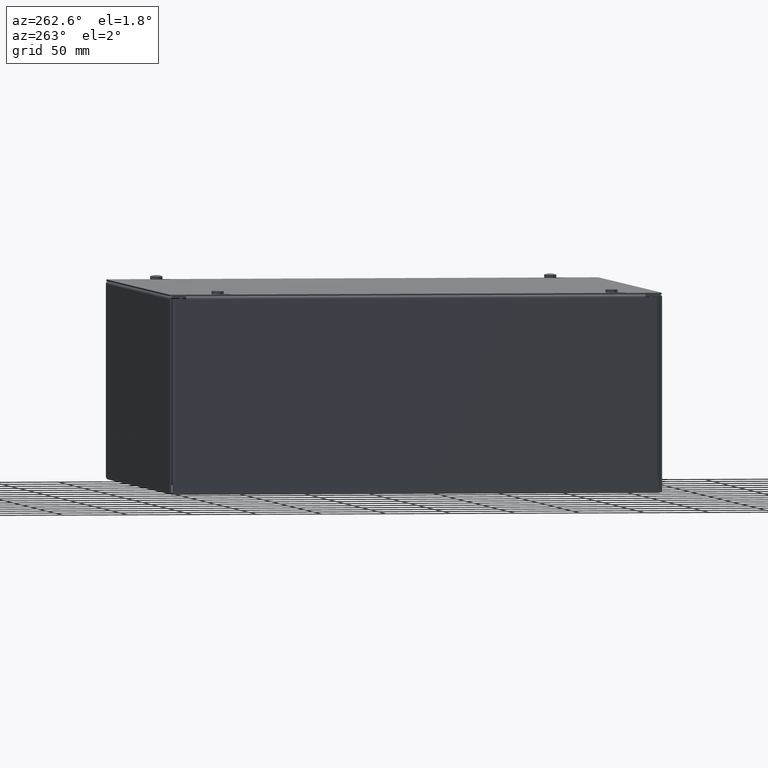
[diagram: clean part render]
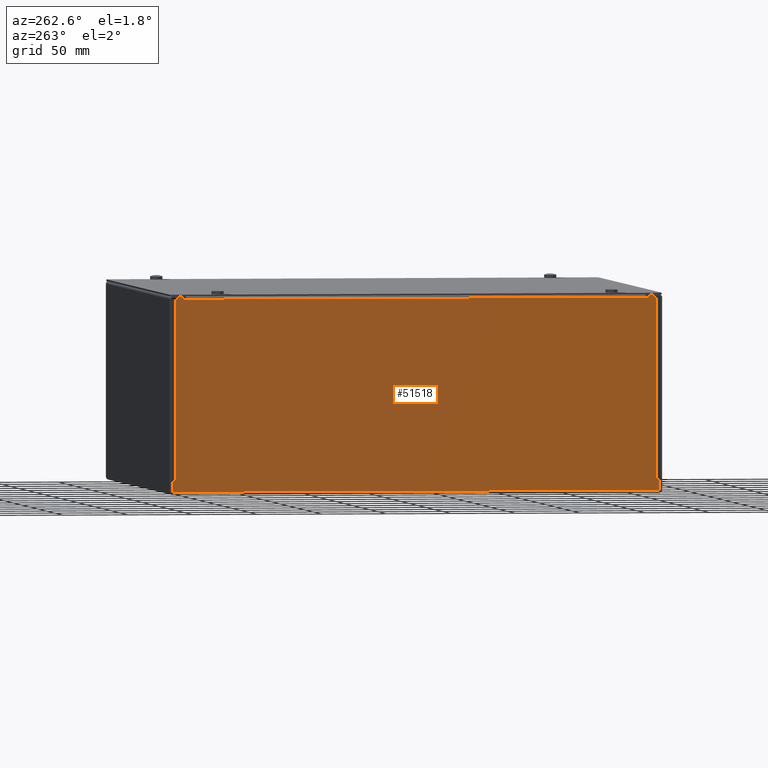
[diagram: same view with one face highlighted and labeled with its STEP entity id]
A machine part, auxiliary view. The second image highlights one B-rep face of the part: STEP entity #51518.
In plain terms, the highlighted planar face has unit normal (1, 0, -0).
Its self-contained STEP definition (entity closure, byte-faithful):
#4146=FACE_BOUND('',#9522,.T.);
#4147=FACE_BOUND('',#9523,.T.);
#4148=FACE_BOUND('',#9524,.T.);
#4149=FACE_BOUND('',#9525,.T.);
#4150=FACE_BOUND('',#9526,.T.);
#4151=FACE_BOUND('',#9527,.T.);
#4152=FACE_BOUND('',#9528,.T.);
#4153=FACE_BOUND('',#9529,.T.);
#4154=FACE_BOUND('',#9530,.T.);
#4155=FACE_BOUND('',#9531,.T.);
#4156=FACE_BOUND('',#9532,.T.);
#4157=FACE_BOUND('',#9533,.T.);
#4158=FACE_BOUND('',#9534,.T.);
#4159=FACE_BOUND('',#9535,.T.);
#4160=FACE_BOUND('',#9536,.T.);
#4161=FACE_BOUND('',#9537,.T.);
#4730=PLANE('',#54825);
#6691=FACE_OUTER_BOUND('',#9521,.T.);
#9521=EDGE_LOOP('',(#38030,#38031,#38032,#38033,#38034,#38035,#38036,#38037,
#38038,#38039,#38040,#38041,#38042,#38043,#38044,#38045,#38046,#38047,#38048,
#38049,#38050,#38051));
#9522=EDGE_LOOP('',(#38052,#38053,#38054,#38055));
#9523=EDGE_LOOP('',(#38056,#38057,#38058,#38059));
#9524=EDGE_LOOP('',(#38060,#38061,#38062,#38063));
#9525=EDGE_LOOP('',(#38064,#38065,#38066,#38067));
#9526=EDGE_LOOP('',(#38068,#38069,#38070,#38071));
#9527=EDGE_LOOP('',(#38072,#38073,#38074,#38075));
#9528=EDGE_LOOP('',(#38076,#38077,#38078,#38079));
#9529=EDGE_LOOP('',(#38080,#38081,#38082,#38083));
#9530=EDGE_LOOP('',(#38084,#38085,#38086,#38087));
#9531=EDGE_LOOP('',(#38088,#38089,#38090,#38091));
#9532=EDGE_LOOP('',(#38092,#38093,#38094,#38095));
#9533=EDGE_LOOP('',(#38096,#38097,#38098,#38099));
#9534=EDGE_LOOP('',(#38100,#38101,#38102,#38103));
#9535=EDGE_LOOP('',(#38104,#38105,#38106,#38107));
#9536=EDGE_LOOP('',(#38108,#38109,#38110,#38111));
#9537=EDGE_LOOP('',(#38112,#38113,#38114,#38115));
#12214=LINE('',#67855,#17655);
#12216=LINE('',#67861,#17657);
#12220=LINE('',#67867,#17661);
#12224=LINE('',#67876,#17665);
#12226=LINE('',#67882,#17667);
#12229=LINE('',#67887,#17670);
#12240=LINE('',#67909,#17681);
#12245=LINE('',#67918,#17686);
#12248=LINE('',#67924,#17689);
#12571=LINE('',#68838,#18012);
#12581=LINE('',#68869,#18022);
#12587=LINE('',#68886,#18028);
#12597=LINE('',#68917,#18038);
#12603=LINE('',#68934,#18044);
#12613=LINE('',#68965,#18054);
#12619=LINE('',#68982,#18060);
#12629=LINE('',#69013,#18070);
#12638=LINE('',#69045,#18079);
#12642=LINE('',#69052,#18083);
#12654=LINE('',#69093,#18095);
#12658=LINE('',#69100,#18099);
#12670=LINE('',#69141,#18111);
#12674=LINE('',#69148,#18115);
#12686=LINE('',#69189,#18127);
#12690=LINE('',#69196,#18131);
#12699=LINE('',#69222,#18140);
#12709=LINE('',#69253,#18150);
#12715=LINE('',#69270,#18156);
#12725=LINE('',#69301,#18166);
#12731=LINE('',#69318,#18172);
#12741=LINE('',#69349,#18182);
#12747=LINE('',#69366,#18188);
#12757=LINE('',#69397,#18198);
#12766=LINE('',#69429,#18207);
#12770=LINE('',#69436,#18211);
#12782=LINE('',#69477,#18223);
#12786=LINE('',#69484,#18227);
#12798=LINE('',#69525,#18239);
#12802=LINE('',#69532,#18243);
#12814=LINE('',#69573,#18255);
#12818=LINE('',#69580,#18259);
#12862=LINE('',#69708,#18303);
#13076=LINE('',#70250,#18517);
#13078=LINE('',#70255,#18519);
#13080=LINE('',#70259,#18521);
#13082=LINE('',#70262,#18523);
#13083=LINE('',#70264,#18524);
#13084=LINE('',#70266,#18525);
#13085=LINE('',#70268,#18526);
#13086=LINE('',#70270,#18527);
#13087=LINE('',#70272,#18528);
#13088=LINE('',#70274,#18529);
#13089=LINE('',#70276,#18530);
#13090=LINE('',#70277,#18531);
#17655=VECTOR('',#56888,0.393700787401575);
#17657=VECTOR('',#56892,0.393700787401575);
#17661=VECTOR('',#56898,0.393700787401575);
#17665=VECTOR('',#56904,0.393700787401575);
#17667=VECTOR('',#56908,0.393700787401575);
#17670=VECTOR('',#56913,0.393700787401575);
#17681=VECTOR('',#56932,0.393700787401575);
#17686=VECTOR('',#56939,0.393700787401575);
#17689=VECTOR('',#56944,0.393700787401575);
#18012=VECTOR('',#57829,0.393700787401575);
#18022=VECTOR('',#57861,0.393700787401575);
#18028=VECTOR('',#57877,0.393700787401575);
#18038=VECTOR('',#57909,0.393700787401575);
#18044=VECTOR('',#57925,0.393700787401575);
#18054=VECTOR('',#57957,0.393700787401575);
#18060=VECTOR('',#57973,0.393700787401575);
#18070=VECTOR('',#58005,0.393700787401575);
#18079=VECTOR('',#58036,0.393700787401575);
#18083=VECTOR('',#58042,0.393700787401575);
#18095=VECTOR('',#58084,0.393700787401575);
#18099=VECTOR('',#58090,0.393700787401575);
#18111=VECTOR('',#58132,0.393700787401575);
#18115=VECTOR('',#58138,0.393700787401575);
#18127=VECTOR('',#58180,0.393700787401575);
#18131=VECTOR('',#58186,0.393700787401575);
#18140=VECTOR('',#58213,0.393700787401575);
#18150=VECTOR('',#58245,0.393700787401575);
#18156=VECTOR('',#58261,0.393700787401575);
#18166=VECTOR('',#58293,0.393700787401575);
#18172=VECTOR('',#58309,0.393700787401575);
#18182=VECTOR('',#58341,0.393700787401575);
#18188=VECTOR('',#58357,0.393700787401575);
#18198=VECTOR('',#58389,0.393700787401575);
#18207=VECTOR('',#58420,0.393700787401575);
#18211=VECTOR('',#58426,0.393700787401575);
#18223=VECTOR('',#58468,0.393700787401575);
#18227=VECTOR('',#58474,0.393700787401575);
#18239=VECTOR('',#58516,0.393700787401575);
#18243=VECTOR('',#58522,0.393700787401575);
#18255=VECTOR('',#58564,0.393700787401575);
#18259=VECTOR('',#58570,0.393700787401575);
#18303=VECTOR('',#58704,0.393700787401575);
#18517=VECTOR('',#59236,0.393700787401575);
#18519=VECTOR('',#59240,0.393700787401575);
#18521=VECTOR('',#59244,0.393700787401575);
#18523=VECTOR('',#59248,0.393700787401575);
#18524=VECTOR('',#59251,0.393700787401575);
#18525=VECTOR('',#59252,0.393700787401575);
#18526=VECTOR('',#59253,0.393700787401575);
#18527=VECTOR('',#59254,0.393700787401575);
#18528=VECTOR('',#59255,0.393700787401575);
#18529=VECTOR('',#59256,0.393700787401575);
#18530=VECTOR('',#59257,0.393700787401575);
#18531=VECTOR('',#59258,0.393700787401575);
#23210=CIRCLE('',#54374,0.4375);
#23212=CIRCLE('',#54377,0.4374);
#23218=CIRCLE('',#54390,0.4375);
#23220=CIRCLE('',#54393,0.4374);
#23226=CIRCLE('',#54406,0.4375);
#23228=CIRCLE('',#54409,0.4374);
#23234=CIRCLE('',#54422,0.4375);
#23236=CIRCLE('',#54425,0.4374);
#23242=CIRCLE('',#54436,0.5625);
#23246=CIRCLE('',#54445,0.5624);
#23250=CIRCLE('',#54452,0.5625);
#23254=CIRCLE('',#54461,0.5624);
#23258=CIRCLE('',#54468,0.5625);
#23262=CIRCLE('',#54477,0.5624);
#23266=CIRCLE('',#54484,0.5625);
#23270=CIRCLE('',#54493,0.5624);
#23274=CIRCLE('',#54502,0.5624);
#23276=CIRCLE('',#54505,0.5625);
#23282=CIRCLE('',#54518,0.5624);
#23284=CIRCLE('',#54521,0.5625);
#23290=CIRCLE('',#54534,0.5624);
#23292=CIRCLE('',#54537,0.5625);
#23298=CIRCLE('',#54550,0.5624);
#23300=CIRCLE('',#54553,0.5625);
#23306=CIRCLE('',#54564,0.4375);
#23310=CIRCLE('',#54573,0.4374);
#23314=CIRCLE('',#54580,0.4375);
#23318=CIRCLE('',#54589,0.4374);
#23322=CIRCLE('',#54596,0.4375);
#23326=CIRCLE('',#54605,0.4374);
#23330=CIRCLE('',#54612,0.4375);
#23334=CIRCLE('',#54621,0.4374);
#23688=VERTEX_POINT('',#67849);
#23690=VERTEX_POINT('',#67853);
#23691=VERTEX_POINT('',#67857);
#23693=VERTEX_POINT('',#67860);
#23696=VERTEX_POINT('',#67870);
#23698=VERTEX_POINT('',#67874);
#23699=VERTEX_POINT('',#67878);
#23701=VERTEX_POINT('',#67881);
#23709=VERTEX_POINT('',#67908);
#23712=VERTEX_POINT('',#67916);
#23714=VERTEX_POINT('',#67922);
#24023=VERTEX_POINT('',#68835);
#24024=VERTEX_POINT('',#68837);
#24030=VERTEX_POINT('',#68852);
#24032=VERTEX_POINT('',#68858);
#24039=VERTEX_POINT('',#68883);
#24040=VERTEX_POINT('',#68885);
#24046=VERTEX_POINT('',#68900);
#24048=VERTEX_POINT('',#68906);
#24055=VERTEX_POINT('',#68931);
#24056=VERTEX_POINT('',#68933);
#24062=VERTEX_POINT('',#68948);
#24064=VERTEX_POINT('',#68954);
#24071=VERTEX_POINT('',#68979);
#24072=VERTEX_POINT('',#68981);
#24078=VERTEX_POINT('',#68996);
#24080=VERTEX_POINT('',#69002);
#24087=VERTEX_POINT('',#69027);
#24088=VERTEX_POINT('',#69029);
#24094=VERTEX_POINT('',#69044);
#24096=VERTEX_POINT('',#69050);
#24103=VERTEX_POINT('',#69075);
#24104=VERTEX_POINT('',#69077);
#24110=VERTEX_POINT('',#69092);
#24112=VERTEX_POINT('',#69098);
#24119=VERTEX_POINT('',#69123);
#24120=VERTEX_POINT('',#69125);
#24126=VERTEX_POINT('',#69140);
#24128=VERTEX_POINT('',#69146);
#24135=VERTEX_POINT('',#69171);
#24136=VERTEX_POINT('',#69173);
#24142=VERTEX_POINT('',#69188);
#24144=VERTEX_POINT('',#69194);
#24151=VERTEX_POINT('',#69219);
#24152=VERTEX_POINT('',#69221);
#24158=VERTEX_POINT('',#69236);
#24160=VERTEX_POINT('',#69242);
#24167=VERTEX_POINT('',#69267);
#24168=VERTEX_POINT('',#69269);
#24174=VERTEX_POINT('',#69284);
#24176=VERTEX_POINT('',#69290);
#24183=VERTEX_POINT('',#69315);
#24184=VERTEX_POINT('',#69317);
#24190=VERTEX_POINT('',#69332);
#24192=VERTEX_POINT('',#69338);
#24199=VERTEX_POINT('',#69363);
#24200=VERTEX_POINT('',#69365);
#24206=VERTEX_POINT('',#69380);
#24208=VERTEX_POINT('',#69386);
#24215=VERTEX_POINT('',#69411);
#24216=VERTEX_POINT('',#69413);
#24222=VERTEX_POINT('',#69428);
#24224=VERTEX_POINT('',#69434);
#24231=VERTEX_POINT('',#69459);
#24232=VERTEX_POINT('',#69461);
#24238=VERTEX_POINT('',#69476);
#24240=VERTEX_POINT('',#69482);
#24247=VERTEX_POINT('',#69507);
#24248=VERTEX_POINT('',#69509);
#24254=VERTEX_POINT('',#69524);
#24256=VERTEX_POINT('',#69530);
#24263=VERTEX_POINT('',#69555);
#24264=VERTEX_POINT('',#69557);
#24270=VERTEX_POINT('',#69572);
#24272=VERTEX_POINT('',#69578);
#24311=VERTEX_POINT('',#69706);
#24480=VERTEX_POINT('',#70243);
#24481=VERTEX_POINT('',#70252);
#24482=VERTEX_POINT('',#70254);
#24483=VERTEX_POINT('',#70258);
#24484=VERTEX_POINT('',#70265);
#24485=VERTEX_POINT('',#70267);
#24486=VERTEX_POINT('',#70269);
#24487=VERTEX_POINT('',#70271);
#24488=VERTEX_POINT('',#70273);
#24489=VERTEX_POINT('',#70275);
#28591=EDGE_CURVE('',#23688,#23690,#12214,.T.);
#28593=EDGE_CURVE('',#23691,#23693,#12216,.T.);
#28597=EDGE_CURVE('',#23693,#23690,#12220,.T.);
#28601=EDGE_CURVE('',#23696,#23698,#12224,.T.);
#28603=EDGE_CURVE('',#23699,#23701,#12226,.T.);
#28606=EDGE_CURVE('',#23701,#23698,#12229,.T.);
#28617=EDGE_CURVE('',#23709,#23688,#12240,.T.);
#28622=EDGE_CURVE('',#23691,#23712,#12245,.T.);
#28625=EDGE_CURVE('',#23699,#23714,#12248,.T.);
#29080=EDGE_CURVE('',#24024,#24023,#12571,.T.);
#29087=EDGE_CURVE('',#24030,#24024,#23210,.T.);
#29091=EDGE_CURVE('',#24023,#24032,#23212,.T.);
#29096=EDGE_CURVE('',#24032,#24030,#12581,.T.);
#29104=EDGE_CURVE('',#24040,#24039,#12587,.T.);
#29111=EDGE_CURVE('',#24046,#24040,#23218,.T.);
#29115=EDGE_CURVE('',#24039,#24048,#23220,.T.);
#29120=EDGE_CURVE('',#24048,#24046,#12597,.T.);
#29128=EDGE_CURVE('',#24056,#24055,#12603,.T.);
#29135=EDGE_CURVE('',#24062,#24056,#23226,.T.);
#29139=EDGE_CURVE('',#24055,#24064,#23228,.T.);
#29144=EDGE_CURVE('',#24064,#24062,#12613,.T.);
#29152=EDGE_CURVE('',#24072,#24071,#12619,.T.);
#29159=EDGE_CURVE('',#24078,#24072,#23234,.T.);
#29163=EDGE_CURVE('',#24071,#24080,#23236,.T.);
#29168=EDGE_CURVE('',#24080,#24078,#12629,.T.);
#29176=EDGE_CURVE('',#24088,#24087,#23242,.T.);
#29183=EDGE_CURVE('',#24094,#24088,#12638,.T.);
#29187=EDGE_CURVE('',#24087,#24096,#12642,.T.);
#29192=EDGE_CURVE('',#24096,#24094,#23246,.T.);
#29200=EDGE_CURVE('',#24104,#24103,#23250,.T.);
#29207=EDGE_CURVE('',#24110,#24104,#12654,.T.);
#29211=EDGE_CURVE('',#24103,#24112,#12658,.T.);
#29216=EDGE_CURVE('',#24112,#24110,#23254,.T.);
#29224=EDGE_CURVE('',#24120,#24119,#23258,.T.);
#29231=EDGE_CURVE('',#24126,#24120,#12670,.T.);
#29235=EDGE_CURVE('',#24119,#24128,#12674,.T.);
#29240=EDGE_CURVE('',#24128,#24126,#23262,.T.);
#29248=EDGE_CURVE('',#24136,#24135,#23266,.T.);
#29255=EDGE_CURVE('',#24142,#24136,#12686,.T.);
#29259=EDGE_CURVE('',#24135,#24144,#12690,.T.);
#29264=EDGE_CURVE('',#24144,#24142,#23270,.T.);
#29272=EDGE_CURVE('',#24152,#24151,#12699,.T.);
#29279=EDGE_CURVE('',#24158,#24152,#23274,.T.);
#29283=EDGE_CURVE('',#24151,#24160,#23276,.T.);
#29288=EDGE_CURVE('',#24160,#24158,#12709,.T.);
#29296=EDGE_CURVE('',#24168,#24167,#12715,.T.);
#29303=EDGE_CURVE('',#24174,#24168,#23282,.T.);
#29307=EDGE_CURVE('',#24167,#24176,#23284,.T.);
#29312=EDGE_CURVE('',#24176,#24174,#12725,.T.);
#29320=EDGE_CURVE('',#24184,#24183,#12731,.T.);
#29327=EDGE_CURVE('',#24190,#24184,#23290,.T.);
#29331=EDGE_CURVE('',#24183,#24192,#23292,.T.);
#29336=EDGE_CURVE('',#24192,#24190,#12741,.T.);
#29344=EDGE_CURVE('',#24200,#24199,#12747,.T.);
#29351=EDGE_CURVE('',#24206,#24200,#23298,.T.);
#29355=EDGE_CURVE('',#24199,#24208,#23300,.T.);
#29360=EDGE_CURVE('',#24208,#24206,#12757,.T.);
#29368=EDGE_CURVE('',#24216,#24215,#23306,.T.);
#29375=EDGE_CURVE('',#24222,#24216,#12766,.T.);
#29379=EDGE_CURVE('',#24215,#24224,#12770,.T.);
#29384=EDGE_CURVE('',#24224,#24222,#23310,.T.);
#29392=EDGE_CURVE('',#24232,#24231,#23314,.T.);
#29399=EDGE_CURVE('',#24238,#24232,#12782,.T.);
#29403=EDGE_CURVE('',#24231,#24240,#12786,.T.);
#29408=EDGE_CURVE('',#24240,#24238,#23318,.T.);
#29416=EDGE_CURVE('',#24248,#24247,#23322,.T.);
#29423=EDGE_CURVE('',#24254,#24248,#12798,.T.);
#29427=EDGE_CURVE('',#24247,#24256,#12802,.T.);
#29432=EDGE_CURVE('',#24256,#24254,#23326,.T.);
#29440=EDGE_CURVE('',#24264,#24263,#23330,.T.);
#29447=EDGE_CURVE('',#24270,#24264,#12814,.T.);
#29451=EDGE_CURVE('',#24263,#24272,#12818,.T.);
#29456=EDGE_CURVE('',#24272,#24270,#23334,.T.);
#29516=EDGE_CURVE('',#23712,#24311,#12862,.T.);
#29787=EDGE_CURVE('',#24480,#23709,#13076,.T.);
#29789=EDGE_CURVE('',#24482,#24481,#13078,.T.);
#29791=EDGE_CURVE('',#24483,#24480,#13080,.T.);
#29793=EDGE_CURVE('',#24481,#24483,#13082,.T.);
#29794=EDGE_CURVE('',#24311,#23696,#13083,.T.);
#29795=EDGE_CURVE('',#23714,#24484,#13084,.T.);
#29796=EDGE_CURVE('',#24484,#24485,#13085,.T.);
#29797=EDGE_CURVE('',#24485,#24486,#13086,.T.);
#29798=EDGE_CURVE('',#24486,#24487,#13087,.T.);
#29799=EDGE_CURVE('',#24487,#24488,#13088,.T.);
#29800=EDGE_CURVE('',#24488,#24489,#13089,.T.);
#29801=EDGE_CURVE('',#24489,#24482,#13090,.T.);
#38030=ORIENTED_EDGE('',*,*,#28617,.T.);
#38031=ORIENTED_EDGE('',*,*,#28591,.T.);
#38032=ORIENTED_EDGE('',*,*,#28597,.F.);
#38033=ORIENTED_EDGE('',*,*,#28593,.F.);
#38034=ORIENTED_EDGE('',*,*,#28622,.T.);
#38035=ORIENTED_EDGE('',*,*,#29516,.T.);
#38036=ORIENTED_EDGE('',*,*,#29794,.T.);
#38037=ORIENTED_EDGE('',*,*,#28601,.T.);
#38038=ORIENTED_EDGE('',*,*,#28606,.F.);
#38039=ORIENTED_EDGE('',*,*,#28603,.F.);
#38040=ORIENTED_EDGE('',*,*,#28625,.T.);
#38041=ORIENTED_EDGE('',*,*,#29795,.T.);
#38042=ORIENTED_EDGE('',*,*,#29796,.T.);
#38043=ORIENTED_EDGE('',*,*,#29797,.T.);
#38044=ORIENTED_EDGE('',*,*,#29798,.T.);
#38045=ORIENTED_EDGE('',*,*,#29799,.T.);
#38046=ORIENTED_EDGE('',*,*,#29800,.T.);
#38047=ORIENTED_EDGE('',*,*,#29801,.T.);
#38048=ORIENTED_EDGE('',*,*,#29789,.T.);
#38049=ORIENTED_EDGE('',*,*,#29793,.T.);
#38050=ORIENTED_EDGE('',*,*,#29791,.T.);
#38051=ORIENTED_EDGE('',*,*,#29787,.T.);
#38052=ORIENTED_EDGE('',*,*,#29096,.T.);
#38053=ORIENTED_EDGE('',*,*,#29087,.T.);
#38054=ORIENTED_EDGE('',*,*,#29080,.T.);
#38055=ORIENTED_EDGE('',*,*,#29091,.T.);
#38056=ORIENTED_EDGE('',*,*,#29120,.T.);
#38057=ORIENTED_EDGE('',*,*,#29111,.T.);
#38058=ORIENTED_EDGE('',*,*,#29104,.T.);
#38059=ORIENTED_EDGE('',*,*,#29115,.T.);
#38060=ORIENTED_EDGE('',*,*,#29144,.T.);
#38061=ORIENTED_EDGE('',*,*,#29135,.T.);
#38062=ORIENTED_EDGE('',*,*,#29128,.T.);
#38063=ORIENTED_EDGE('',*,*,#29139,.T.);
#38064=ORIENTED_EDGE('',*,*,#29168,.T.);
#38065=ORIENTED_EDGE('',*,*,#29159,.T.);
#38066=ORIENTED_EDGE('',*,*,#29152,.T.);
#38067=ORIENTED_EDGE('',*,*,#29163,.T.);
#38068=ORIENTED_EDGE('',*,*,#29192,.T.);
#38069=ORIENTED_EDGE('',*,*,#29183,.T.);
#38070=ORIENTED_EDGE('',*,*,#29176,.T.);
#38071=ORIENTED_EDGE('',*,*,#29187,.T.);
#38072=ORIENTED_EDGE('',*,*,#29216,.T.);
#38073=ORIENTED_EDGE('',*,*,#29207,.T.);
#38074=ORIENTED_EDGE('',*,*,#29200,.T.);
#38075=ORIENTED_EDGE('',*,*,#29211,.T.);
#38076=ORIENTED_EDGE('',*,*,#29240,.T.);
#38077=ORIENTED_EDGE('',*,*,#29231,.T.);
#38078=ORIENTED_EDGE('',*,*,#29224,.T.);
#38079=ORIENTED_EDGE('',*,*,#29235,.T.);
#38080=ORIENTED_EDGE('',*,*,#29264,.T.);
#38081=ORIENTED_EDGE('',*,*,#29255,.T.);
#38082=ORIENTED_EDGE('',*,*,#29248,.T.);
#38083=ORIENTED_EDGE('',*,*,#29259,.T.);
#38084=ORIENTED_EDGE('',*,*,#29288,.T.);
#38085=ORIENTED_EDGE('',*,*,#29279,.T.);
#38086=ORIENTED_EDGE('',*,*,#29272,.T.);
#38087=ORIENTED_EDGE('',*,*,#29283,.T.);
#38088=ORIENTED_EDGE('',*,*,#29312,.T.);
#38089=ORIENTED_EDGE('',*,*,#29303,.T.);
#38090=ORIENTED_EDGE('',*,*,#29296,.T.);
#38091=ORIENTED_EDGE('',*,*,#29307,.T.);
#38092=ORIENTED_EDGE('',*,*,#29336,.T.);
#38093=ORIENTED_EDGE('',*,*,#29327,.T.);
#38094=ORIENTED_EDGE('',*,*,#29320,.T.);
#38095=ORIENTED_EDGE('',*,*,#29331,.T.);
#38096=ORIENTED_EDGE('',*,*,#29360,.T.);
#38097=ORIENTED_EDGE('',*,*,#29351,.T.);
#38098=ORIENTED_EDGE('',*,*,#29344,.T.);
#38099=ORIENTED_EDGE('',*,*,#29355,.T.);
#38100=ORIENTED_EDGE('',*,*,#29384,.T.);
#38101=ORIENTED_EDGE('',*,*,#29375,.T.);
#38102=ORIENTED_EDGE('',*,*,#29368,.T.);
#38103=ORIENTED_EDGE('',*,*,#29379,.T.);
#38104=ORIENTED_EDGE('',*,*,#29408,.T.);
#38105=ORIENTED_EDGE('',*,*,#29399,.T.);
#38106=ORIENTED_EDGE('',*,*,#29392,.T.);
#38107=ORIENTED_EDGE('',*,*,#29403,.T.);
#38108=ORIENTED_EDGE('',*,*,#29432,.T.);
#38109=ORIENTED_EDGE('',*,*,#29423,.T.);
#38110=ORIENTED_EDGE('',*,*,#29416,.T.);
#38111=ORIENTED_EDGE('',*,*,#29427,.T.);
#38112=ORIENTED_EDGE('',*,*,#29456,.T.);
#38113=ORIENTED_EDGE('',*,*,#29447,.T.);
#38114=ORIENTED_EDGE('',*,*,#29440,.T.);
#38115=ORIENTED_EDGE('',*,*,#29451,.T.);
#51518=ADVANCED_FACE('',(#6691,#4146,#4147,#4148,#4149,#4150,#4151,#4152,
#4153,#4154,#4155,#4156,#4157,#4158,#4159,#4160,#4161),#4730,.F.);
#54374=AXIS2_PLACEMENT_3D('',#68853,#57841,#57842);
#54377=AXIS2_PLACEMENT_3D('',#68860,#57849,#57850);
#54390=AXIS2_PLACEMENT_3D('',#68901,#57889,#57890);
#54393=AXIS2_PLACEMENT_3D('',#68908,#57897,#57898);
#54406=AXIS2_PLACEMENT_3D('',#68949,#57937,#57938);
#54409=AXIS2_PLACEMENT_3D('',#68956,#57945,#57946);
#54422=AXIS2_PLACEMENT_3D('',#68997,#57985,#57986);
#54425=AXIS2_PLACEMENT_3D('',#69004,#57993,#57994);
#54436=AXIS2_PLACEMENT_3D('',#69030,#58022,#58023);
#54445=AXIS2_PLACEMENT_3D('',#69061,#58052,#58053);
#54452=AXIS2_PLACEMENT_3D('',#69078,#58070,#58071);
#54461=AXIS2_PLACEMENT_3D('',#69109,#58100,#58101);
#54468=AXIS2_PLACEMENT_3D('',#69126,#58118,#58119);
#54477=AXIS2_PLACEMENT_3D('',#69157,#58148,#58149);
#54484=AXIS2_PLACEMENT_3D('',#69174,#58166,#58167);
#54493=AXIS2_PLACEMENT_3D('',#69205,#58196,#58197);
#54502=AXIS2_PLACEMENT_3D('',#69237,#58225,#58226);
#54505=AXIS2_PLACEMENT_3D('',#69244,#58233,#58234);
#54518=AXIS2_PLACEMENT_3D('',#69285,#58273,#58274);
#54521=AXIS2_PLACEMENT_3D('',#69292,#58281,#58282);
#54534=AXIS2_PLACEMENT_3D('',#69333,#58321,#58322);
#54537=AXIS2_PLACEMENT_3D('',#69340,#58329,#58330);
#54550=AXIS2_PLACEMENT_3D('',#69381,#58369,#58370);
#54553=AXIS2_PLACEMENT_3D('',#69388,#58377,#58378);
#54564=AXIS2_PLACEMENT_3D('',#69414,#58406,#58407);
#54573=AXIS2_PLACEMENT_3D('',#69445,#58436,#58437);
#54580=AXIS2_PLACEMENT_3D('',#69462,#58454,#58455);
#54589=AXIS2_PLACEMENT_3D('',#69493,#58484,#58485);
#54596=AXIS2_PLACEMENT_3D('',#69510,#58502,#58503);
#54605=AXIS2_PLACEMENT_3D('',#69541,#58532,#58533);
#54612=AXIS2_PLACEMENT_3D('',#69558,#58550,#58551);
#54621=AXIS2_PLACEMENT_3D('',#69589,#58580,#58581);
#54825=AXIS2_PLACEMENT_3D('',#70263,#59249,#59250);
#56888=DIRECTION('',(0.,0.,1.));
#56892=DIRECTION('',(0.,0.,1.));
#56898=DIRECTION('',(0.,-1.,1.68518815994711E-15));
#56904=DIRECTION('',(0.,0.,1.));
#56908=DIRECTION('',(0.,0.,1.));
#56913=DIRECTION('',(0.,-1.,1.68518815994711E-15));
#56932=DIRECTION('',(-3.71852800797359E-32,1.,0.));
#56939=DIRECTION('',(-3.71852800797359E-32,1.,0.));
#56944=DIRECTION('',(-3.71852800797359E-32,1.,0.));
#57829=DIRECTION('',(-5.02883480007353E-31,0.,-1.));
#57841=DIRECTION('center_axis',(1.,3.71852800797359E-32,-5.02883480007353E-31));
#57842=DIRECTION('ref_axis',(0.,1.,0.));
#57849=DIRECTION('center_axis',(-1.,-3.71852800797359E-32,5.02883480007353E-31));
#57850=DIRECTION('ref_axis',(0.,-1.,0.));
#57861=DIRECTION('',(-5.02883480007353E-31,0.,-1.));
#57877=DIRECTION('',(-5.02883480007353E-31,0.,-1.));
#57889=DIRECTION('center_axis',(1.,3.71852800797359E-32,-5.02883480007353E-31));
#57890=DIRECTION('ref_axis',(0.,1.,0.));
#57897=DIRECTION('center_axis',(-1.,-3.71852800797359E-32,5.02883480007353E-31));
#57898=DIRECTION('ref_axis',(0.,-1.,0.));
#57909=DIRECTION('',(-5.02883480007353E-31,0.,-1.));
#57925=DIRECTION('',(-5.02883480007353E-31,0.,-1.));
#57937=DIRECTION('center_axis',(1.,3.71852800797359E-32,-5.02883480007353E-31));
#57938=DIRECTION('ref_axis',(0.,1.,0.));
#57945=DIRECTION('center_axis',(-1.,-3.71852800797359E-32,5.02883480007353E-31));
#57946=DIRECTION('ref_axis',(0.,-1.,0.));
#57957=DIRECTION('',(-5.02883480007353E-31,0.,-1.));
#57973=DIRECTION('',(-5.02883480007353E-31,0.,-1.));
#57985=DIRECTION('center_axis',(1.,3.71852800797359E-32,-5.02883480007353E-31));
#57986=DIRECTION('ref_axis',(0.,1.,0.));
#57993=DIRECTION('center_axis',(-1.,-3.71852800797359E-32,5.02883480007353E-31));
#57994=DIRECTION('ref_axis',(0.,-1.,0.));
#58005=DIRECTION('',(-5.02883480007353E-31,0.,-1.));
#58022=DIRECTION('center_axis',(1.,3.71852800797359E-32,-5.02883480007353E-31));
#58023=DIRECTION('ref_axis',(0.,1.,0.));
#58036=DIRECTION('',(3.71852800797359E-32,-1.,0.));
#58042=DIRECTION('',(3.71852800797359E-32,-1.,0.));
#58052=DIRECTION('center_axis',(-1.,-3.71852800797359E-32,5.02883480007353E-31));
#58053=DIRECTION('ref_axis',(0.,-1.,0.));
#58070=DIRECTION('center_axis',(1.,3.71852800797359E-32,-5.02883480007353E-31));
#58071=DIRECTION('ref_axis',(0.,1.,0.));
#58084=DIRECTION('',(3.71852800797359E-32,-1.,0.));
#58090=DIRECTION('',(3.71852800797359E-32,-1.,0.));
#58100=DIRECTION('center_axis',(-1.,-3.71852800797359E-32,5.02883480007353E-31));
#58101=DIRECTION('ref_axis',(0.,-1.,0.));
#58118=DIRECTION('center_axis',(1.,3.71852800797359E-32,-5.02883480007353E-31));
#58119=DIRECTION('ref_axis',(0.,1.,0.));
#58132=DIRECTION('',(3.71852800797359E-32,-1.,0.));
#58138=DIRECTION('',(3.71852800797359E-32,-1.,0.));
#58148=DIRECTION('center_axis',(-1.,-3.71852800797359E-32,5.02883480007353E-31));
#58149=DIRECTION('ref_axis',(0.,-1.,0.));
#58166=DIRECTION('center_axis',(1.,3.71852800797359E-32,-5.02883480007353E-31));
#58167=DIRECTION('ref_axis',(0.,1.,0.));
#58180=DIRECTION('',(3.71852800797359E-32,-1.,0.));
#58186=DIRECTION('',(3.71852800797359E-32,-1.,0.));
#58196=DIRECTION('center_axis',(-1.,-3.71852800797359E-32,5.02883480007353E-31));
#58197=DIRECTION('ref_axis',(0.,-1.,0.));
#58213=DIRECTION('',(-3.71852800797359E-32,1.,0.));
#58225=DIRECTION('center_axis',(-1.,-3.71852800797359E-32,5.02883480007353E-31));
#58226=DIRECTION('ref_axis',(0.,-1.,0.));
#58233=DIRECTION('center_axis',(1.,3.71852800797359E-32,-5.02883480007353E-31));
#58234=DIRECTION('ref_axis',(0.,1.,0.));
#58245=DIRECTION('',(-3.71852800797359E-32,1.,0.));
#58261=DIRECTION('',(-3.71852800797359E-32,1.,0.));
#58273=DIRECTION('center_axis',(-1.,-3.71852800797359E-32,5.02883480007353E-31));
#58274=DIRECTION('ref_axis',(0.,-1.,0.));
#58281=DIRECTION('center_axis',(1.,3.71852800797359E-32,-5.02883480007353E-31));
#58282=DIRECTION('ref_axis',(0.,1.,0.));
#58293=DIRECTION('',(-3.71852800797359E-32,1.,0.));
#58309=DIRECTION('',(-3.71852800797359E-32,1.,0.));
#58321=DIRECTION('center_axis',(-1.,-3.71852800797359E-32,5.02883480007353E-31));
#58322=DIRECTION('ref_axis',(0.,-1.,0.));
#58329=DIRECTION('center_axis',(1.,3.71852800797359E-32,-5.02883480007353E-31));
#58330=DIRECTION('ref_axis',(0.,1.,0.));
#58341=DIRECTION('',(-3.71852800797359E-32,1.,0.));
#58357=DIRECTION('',(-3.71852800797359E-32,1.,0.));
#58369=DIRECTION('center_axis',(-1.,-3.71852800797359E-32,5.02883480007353E-31));
#58370=DIRECTION('ref_axis',(0.,-1.,0.));
#58377=DIRECTION('center_axis',(1.,3.71852800797359E-32,-5.02883480007353E-31));
#58378=DIRECTION('ref_axis',(0.,1.,0.));
#58389=DIRECTION('',(-3.71852800797359E-32,1.,0.));
#58406=DIRECTION('center_axis',(1.,3.71852800797359E-32,-5.02883480007353E-31));
#58407=DIRECTION('ref_axis',(0.,1.,0.));
#58420=DIRECTION('',(5.02883480007353E-31,0.,1.));
#58426=DIRECTION('',(5.02883480007353E-31,0.,1.));
#58436=DIRECTION('center_axis',(-1.,-3.71852800797359E-32,5.02883480007353E-31));
#58437=DIRECTION('ref_axis',(0.,-1.,0.));
#58454=DIRECTION('center_axis',(1.,3.71852800797359E-32,-5.02883480007353E-31));
#58455=DIRECTION('ref_axis',(0.,1.,0.));
#58468=DIRECTION('',(5.02883480007353E-31,0.,1.));
#58474=DIRECTION('',(5.02883480007353E-31,0.,1.));
#58484=DIRECTION('center_axis',(-1.,-3.71852800797359E-32,5.02883480007353E-31));
#58485=DIRECTION('ref_axis',(0.,-1.,0.));
#58502=DIRECTION('center_axis',(1.,3.71852800797359E-32,-5.02883480007353E-31));
#58503=DIRECTION('ref_axis',(0.,1.,0.));
#58516=DIRECTION('',(5.02883480007353E-31,0.,1.));
#58522=DIRECTION('',(5.02883480007353E-31,0.,1.));
#58532=DIRECTION('center_axis',(-1.,-3.71852800797359E-32,5.02883480007353E-31));
#58533=DIRECTION('ref_axis',(0.,-1.,0.));
#58550=DIRECTION('center_axis',(1.,3.71852800797359E-32,-5.02883480007353E-31));
#58551=DIRECTION('ref_axis',(0.,1.,0.));
#58564=DIRECTION('',(5.02883480007353E-31,0.,1.));
#58570=DIRECTION('',(5.02883480007353E-31,0.,1.));
#58580=DIRECTION('center_axis',(-1.,-3.71852800797359E-32,5.02883480007353E-31));
#58581=DIRECTION('ref_axis',(0.,-1.,0.));
#58704=DIRECTION('',(-3.71852800797359E-32,1.,0.));
#59236=DIRECTION('',(5.02883480007353E-31,0.,1.));
#59240=DIRECTION('',(-3.71852800797359E-32,1.,0.));
#59244=DIRECTION('',(3.71852800797359E-32,-1.,0.));
#59248=DIRECTION('',(5.02883480007353E-31,0.,1.));
#59249=DIRECTION('center_axis',(1.,3.71852800797359E-32,-5.02883480007353E-31));
#59250=DIRECTION('ref_axis',(-5.02883480007353E-31,0.,-1.));
#59251=DIRECTION('',(-3.71852800797359E-32,1.,0.));
#59252=DIRECTION('',(-5.02883480007353E-31,0.,-1.));
#59253=DIRECTION('',(3.71852800797359E-32,-1.,0.));
#59254=DIRECTION('',(-5.02883480007353E-31,0.,-1.));
#59255=DIRECTION('',(-3.71852800797359E-32,1.,0.));
#59256=DIRECTION('',(-6.12323399573677E-17,0.,-1.));
#59257=DIRECTION('',(3.71852800797359E-32,-1.,0.));
#59258=DIRECTION('',(6.12323399573677E-17,0.,1.));
#67849=CARTESIAN_POINT('',(-7.5,-7.23499999999999,5.91400000000003));
#67853=CARTESIAN_POINT('',(-7.5,-7.23499999999999,6.00000000000002));
#67855=CARTESIAN_POINT('',(-7.5,-7.23499999999999,5.91400000000003));
#67857=CARTESIAN_POINT('',(-7.5,-7.10499999999999,5.91400000000003));
#67860=CARTESIAN_POINT('',(-7.5,-7.10499999999999,6.00000000000002));
#67861=CARTESIAN_POINT('',(-7.5,-7.10499999999999,5.91400000000003));
#67867=CARTESIAN_POINT('',(-7.5,-7.10499999999999,6.00000000000002));
#67870=CARTESIAN_POINT('',(-7.5,7.10500000000001,5.914));
#67874=CARTESIAN_POINT('',(-7.5,7.10500000000001,6.));
#67876=CARTESIAN_POINT('',(-7.5,7.10500000000001,5.914));
#67878=CARTESIAN_POINT('',(-7.5,7.23500000000001,5.914));
#67881=CARTESIAN_POINT('',(-7.5,7.23500000000001,6.));
#67882=CARTESIAN_POINT('',(-7.5,7.23500000000001,5.914));
#67887=CARTESIAN_POINT('',(-7.5,7.23500000000001,6.));
#67908=CARTESIAN_POINT('',(-7.5,-7.328,5.914));
#67909=CARTESIAN_POINT('',(-7.5,-3.4995,5.914));
#67916=CARTESIAN_POINT('',(-7.5,-6.999,5.914));
#67918=CARTESIAN_POINT('',(-7.5,-3.4995,5.914));
#67922=CARTESIAN_POINT('',(-7.5,7.328,5.914));
#67924=CARTESIAN_POINT('',(-7.5,-3.4995,5.914));
#68835=CARTESIAN_POINT('',(-7.5,-5.0225,1.49806717048005));
#68837=CARTESIAN_POINT('',(-7.5,-5.0225,1.49816759117474));
#68838=CARTESIAN_POINT('',(-7.5,-5.0225,2.24903358524003));
#68852=CARTESIAN_POINT('',(-7.5,-5.0225,0.62683240882526));
#68853=CARTESIAN_POINT('Origin',(-7.5,-5.0625,1.0625));
#68858=CARTESIAN_POINT('',(-7.5,-5.0225,0.626932829519946));
#68860=CARTESIAN_POINT('Origin',(-7.5,-5.0625,1.0625));
#68869=CARTESIAN_POINT('',(-7.5,-5.0225,1.81341620441263));
#68883=CARTESIAN_POINT('',(-7.5,-1.6475,1.49806717048005));
#68885=CARTESIAN_POINT('',(-7.5,-1.6475,1.49816759117474));
#68886=CARTESIAN_POINT('',(-7.5,-1.6475,2.24903358524003));
#68900=CARTESIAN_POINT('',(-7.5,-1.6475,0.62683240882526));
#68901=CARTESIAN_POINT('Origin',(-7.5,-1.6875,1.0625));
#68906=CARTESIAN_POINT('',(-7.5,-1.6475,0.626932829519946));
#68908=CARTESIAN_POINT('Origin',(-7.5,-1.6875,1.0625));
#68917=CARTESIAN_POINT('',(-7.5,-1.6475,1.81341620441263));
#68931=CARTESIAN_POINT('',(-7.5,5.1025,1.49806717048005));
#68933=CARTESIAN_POINT('',(-7.5,5.1025,1.49816759117474));
#68934=CARTESIAN_POINT('',(-7.5,5.1025,2.24903358524003));
#68948=CARTESIAN_POINT('',(-7.5,5.1025,0.62683240882526));
#68949=CARTESIAN_POINT('Origin',(-7.5,5.0625,1.0625));
#68954=CARTESIAN_POINT('',(-7.5,5.1025,0.626932829519947));
#68956=CARTESIAN_POINT('Origin',(-7.5,5.0625,1.0625));
#68965=CARTESIAN_POINT('',(-7.5,5.1025,1.81341620441263));
#68979=CARTESIAN_POINT('',(-7.5,1.7275,1.49806717048005));
#68981=CARTESIAN_POINT('',(-7.5,1.7275,1.49816759117474));
#68982=CARTESIAN_POINT('',(-7.5,1.7275,2.24903358524003));
#68996=CARTESIAN_POINT('',(-7.5,1.7275,0.62683240882526));
#68997=CARTESIAN_POINT('Origin',(-7.5,1.6875,1.0625));
#69002=CARTESIAN_POINT('',(-7.5,1.7275,0.626932829519946));
#69004=CARTESIAN_POINT('Origin',(-7.5,1.6875,1.0625));
#69013=CARTESIAN_POINT('',(-7.5,1.7275,1.81341620441263));
#69027=CARTESIAN_POINT('',(-7.5,-4.50222662922463,1.0125));
#69029=CARTESIAN_POINT('',(-7.5,-5.62277337077537,1.0125));
#69030=CARTESIAN_POINT('Origin',(-7.5,-5.0625,1.0625));
#69044=CARTESIAN_POINT('',(-7.5,-5.62267297328593,1.0125));
#69045=CARTESIAN_POINT('',(-7.5,-2.81138668538769,1.0125));
#69050=CARTESIAN_POINT('',(-7.5,-4.50232702671407,1.0125));
#69052=CARTESIAN_POINT('',(-7.5,-2.25116351335703,1.0125));
#69061=CARTESIAN_POINT('Origin',(-7.5,-5.0625,1.0625));
#69075=CARTESIAN_POINT('',(-7.5,-1.12722662922463,1.0125));
#69077=CARTESIAN_POINT('',(-7.5,-2.24777337077537,1.0125));
#69078=CARTESIAN_POINT('Origin',(-7.5,-1.6875,1.0625));
#69092=CARTESIAN_POINT('',(-7.5,-2.24767297328593,1.0125));
#69093=CARTESIAN_POINT('',(-7.5,-1.12388668538769,1.0125));
#69098=CARTESIAN_POINT('',(-7.5,-1.12732702671407,1.0125));
#69100=CARTESIAN_POINT('',(-7.5,-0.563663513357035,1.0125));
#69109=CARTESIAN_POINT('Origin',(-7.5,-1.6875,1.0625));
#69123=CARTESIAN_POINT('',(-7.5,5.62277337077537,1.0125));
#69125=CARTESIAN_POINT('',(-7.5,4.50222662922462,1.0125));
#69126=CARTESIAN_POINT('Origin',(-7.5,5.0625,1.0625));
#69140=CARTESIAN_POINT('',(-7.5,4.50232702671407,1.0125));
#69141=CARTESIAN_POINT('',(-7.5,2.25111331461231,1.0125));
#69146=CARTESIAN_POINT('',(-7.5,5.62267297328593,1.0125));
#69148=CARTESIAN_POINT('',(-7.5,2.81133648664296,1.0125));
#69157=CARTESIAN_POINT('Origin',(-7.5,5.0625,1.0625));
#69171=CARTESIAN_POINT('',(-7.5,2.24777337077537,1.0125));
#69173=CARTESIAN_POINT('',(-7.5,1.12722662922463,1.0125));
#69174=CARTESIAN_POINT('Origin',(-7.5,1.6875,1.0625));
#69188=CARTESIAN_POINT('',(-7.5,1.12732702671407,1.0125));
#69189=CARTESIAN_POINT('',(-7.5,0.563613314612313,1.0125));
#69194=CARTESIAN_POINT('',(-7.5,2.24767297328593,1.0125));
#69196=CARTESIAN_POINT('',(-7.5,1.12383648664297,1.0125));
#69205=CARTESIAN_POINT('Origin',(-7.5,1.6875,1.0625));
#69219=CARTESIAN_POINT('',(-7.5,2.24777337077537,1.1125));
#69221=CARTESIAN_POINT('',(-7.5,2.24767297328593,1.1125));
#69222=CARTESIAN_POINT('',(-7.5,1.12388668538769,1.1125));
#69236=CARTESIAN_POINT('',(-7.5,1.12732702671407,1.1125));
#69237=CARTESIAN_POINT('Origin',(-7.5,1.6875,1.0625));
#69242=CARTESIAN_POINT('',(-7.5,1.12722662922463,1.1125));
#69244=CARTESIAN_POINT('Origin',(-7.5,1.6875,1.0625));
#69253=CARTESIAN_POINT('',(-7.5,0.563663513357034,1.1125));
#69267=CARTESIAN_POINT('',(-7.5,5.62277337077537,1.1125));
#69269=CARTESIAN_POINT('',(-7.5,5.62267297328593,1.1125));
#69270=CARTESIAN_POINT('',(-7.5,2.81138668538769,1.1125));
#69284=CARTESIAN_POINT('',(-7.5,4.50232702671407,1.1125));
#69285=CARTESIAN_POINT('Origin',(-7.5,5.0625,1.0625));
#69290=CARTESIAN_POINT('',(-7.5,4.50222662922462,1.1125));
#69292=CARTESIAN_POINT('Origin',(-7.5,5.0625,1.0625));
#69301=CARTESIAN_POINT('',(-7.5,2.25116351335703,1.1125));
#69315=CARTESIAN_POINT('',(-7.5,-1.12722662922463,1.1125));
#69317=CARTESIAN_POINT('',(-7.5,-1.12732702671407,1.1125));
#69318=CARTESIAN_POINT('',(-7.5,-0.563613314612313,1.1125));
#69332=CARTESIAN_POINT('',(-7.5,-2.24767297328593,1.1125));
#69333=CARTESIAN_POINT('Origin',(-7.5,-1.6875,1.0625));
#69338=CARTESIAN_POINT('',(-7.5,-2.24777337077537,1.1125));
#69340=CARTESIAN_POINT('Origin',(-7.5,-1.6875,1.0625));
#69349=CARTESIAN_POINT('',(-7.5,-1.12383648664297,1.1125));
#69363=CARTESIAN_POINT('',(-7.5,-4.50222662922463,1.1125));
#69365=CARTESIAN_POINT('',(-7.5,-4.50232702671407,1.1125));
#69366=CARTESIAN_POINT('',(-7.5,-2.25111331461231,1.1125));
#69380=CARTESIAN_POINT('',(-7.5,-5.62267297328593,1.1125));
#69381=CARTESIAN_POINT('Origin',(-7.5,-5.0625,1.0625));
#69386=CARTESIAN_POINT('',(-7.5,-5.62277337077537,1.1125));
#69388=CARTESIAN_POINT('Origin',(-7.5,-5.0625,1.0625));
#69397=CARTESIAN_POINT('',(-7.5,-2.81133648664297,1.1125));
#69411=CARTESIAN_POINT('',(-7.5,1.6475,0.62683240882526));
#69413=CARTESIAN_POINT('',(-7.5,1.6475,1.49816759117474));
#69414=CARTESIAN_POINT('Origin',(-7.5,1.6875,1.0625));
#69428=CARTESIAN_POINT('',(-7.5,1.6475,1.49806717048005));
#69429=CARTESIAN_POINT('',(-7.5,1.6475,2.24908379558737));
#69434=CARTESIAN_POINT('',(-7.5,1.6475,0.626932829519946));
#69436=CARTESIAN_POINT('',(-7.5,1.6475,1.81346641475997));
#69445=CARTESIAN_POINT('Origin',(-7.5,1.6875,1.0625));
#69459=CARTESIAN_POINT('',(-7.5,5.0225,0.626832408825261));
#69461=CARTESIAN_POINT('',(-7.5,5.0225,1.49816759117474));
#69462=CARTESIAN_POINT('Origin',(-7.5,5.0625,1.0625));
#69476=CARTESIAN_POINT('',(-7.5,5.0225,1.49806717048005));
#69477=CARTESIAN_POINT('',(-7.5,5.0225,2.24908379558737));
#69482=CARTESIAN_POINT('',(-7.5,5.0225,0.626932829519947));
#69484=CARTESIAN_POINT('',(-7.5,5.0225,1.81346641475997));
#69493=CARTESIAN_POINT('Origin',(-7.5,5.0625,1.0625));
#69507=CARTESIAN_POINT('',(-7.5,-1.7275,0.62683240882526));
#69509=CARTESIAN_POINT('',(-7.5,-1.7275,1.49816759117474));
#69510=CARTESIAN_POINT('Origin',(-7.5,-1.6875,1.0625));
#69524=CARTESIAN_POINT('',(-7.5,-1.7275,1.49806717048005));
#69525=CARTESIAN_POINT('',(-7.5,-1.7275,2.24908379558737));
#69530=CARTESIAN_POINT('',(-7.5,-1.7275,0.626932829519946));
#69532=CARTESIAN_POINT('',(-7.5,-1.7275,1.81346641475997));
#69541=CARTESIAN_POINT('Origin',(-7.5,-1.6875,1.0625));
#69555=CARTESIAN_POINT('',(-7.5,-5.1025,0.62683240882526));
#69557=CARTESIAN_POINT('',(-7.5,-5.1025,1.49816759117474));
#69558=CARTESIAN_POINT('Origin',(-7.5,-5.0625,1.0625));
#69572=CARTESIAN_POINT('',(-7.5,-5.1025,1.49806717048005));
#69573=CARTESIAN_POINT('',(-7.5,-5.1025,2.24908379558737));
#69578=CARTESIAN_POINT('',(-7.5,-5.1025,0.626932829519947));
#69580=CARTESIAN_POINT('',(-7.5,-5.1025,1.81346641475997));
#69589=CARTESIAN_POINT('Origin',(-7.5,-5.0625,1.0625));
#69706=CARTESIAN_POINT('',(-7.5,6.999,5.914));
#69708=CARTESIAN_POINT('',(-7.5,-3.4995,5.914));
#70243=CARTESIAN_POINT('',(-7.5,-7.328,0.39900066898));
#70250=CARTESIAN_POINT('',(-7.5,-7.328,4.457));
#70252=CARTESIAN_POINT('',(-7.5,-7.3278,0.39880066898));
#70254=CARTESIAN_POINT('',(-7.5,-7.414,0.39880066898));
#70255=CARTESIAN_POINT('',(-7.5,-3.6639,0.39880066898));
#70258=CARTESIAN_POINT('',(-7.5,-7.3278,0.39900066898));
#70259=CARTESIAN_POINT('',(-7.5,-3.707,0.39900066898));
#70262=CARTESIAN_POINT('',(-7.5,-7.3278,1.69950033449));
#70263=CARTESIAN_POINT('Origin',(-7.5,0.,3.));
#70264=CARTESIAN_POINT('',(-7.5,-3.4995,5.914));
#70265=CARTESIAN_POINT('',(-7.5,7.328,0.39900066898));
#70266=CARTESIAN_POINT('',(-7.5,7.328,1.69950033449));
#70267=CARTESIAN_POINT('',(-7.5,7.3278,0.39900066898));
#70268=CARTESIAN_POINT('',(-7.5,3.6639,0.39900066898));
#70269=CARTESIAN_POINT('',(-7.5,7.3278,0.39880066898));
#70270=CARTESIAN_POINT('',(-7.5,7.3278,1.69940033449));
#70271=CARTESIAN_POINT('',(-7.5,7.414,0.39880066898));
#70272=CARTESIAN_POINT('',(-7.5,3.707,0.39880066898));
#70273=CARTESIAN_POINT('',(-7.5,7.414,0.086));
#70274=CARTESIAN_POINT('',(-7.5,7.414,6.));
#70275=CARTESIAN_POINT('',(-7.5,-7.414,0.086));
#70276=CARTESIAN_POINT('',(-7.5,-3.707,0.0860000000000001));
#70277=CARTESIAN_POINT('',(-7.5,-7.414,0.));